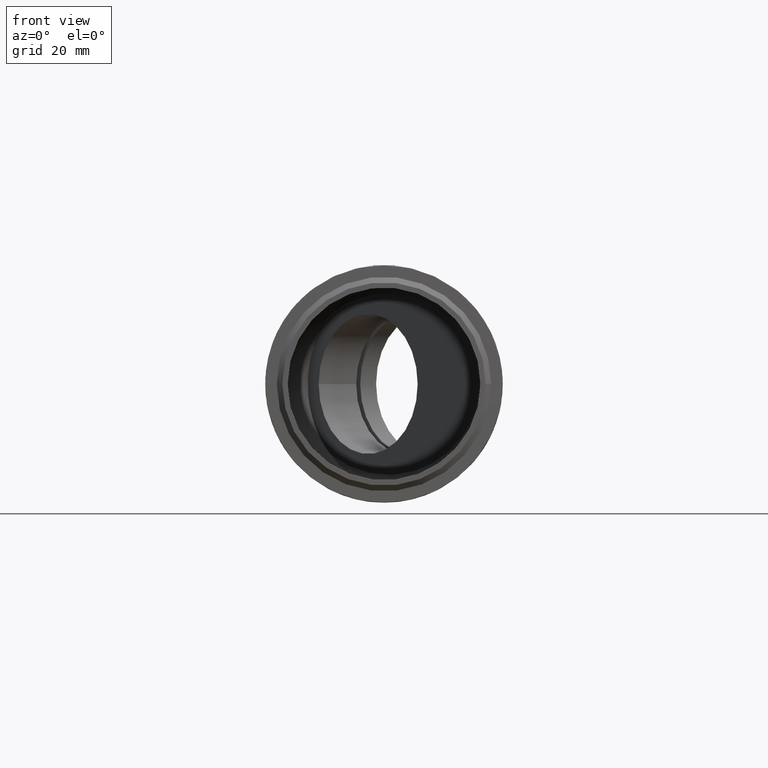
[diagram: clean part render]
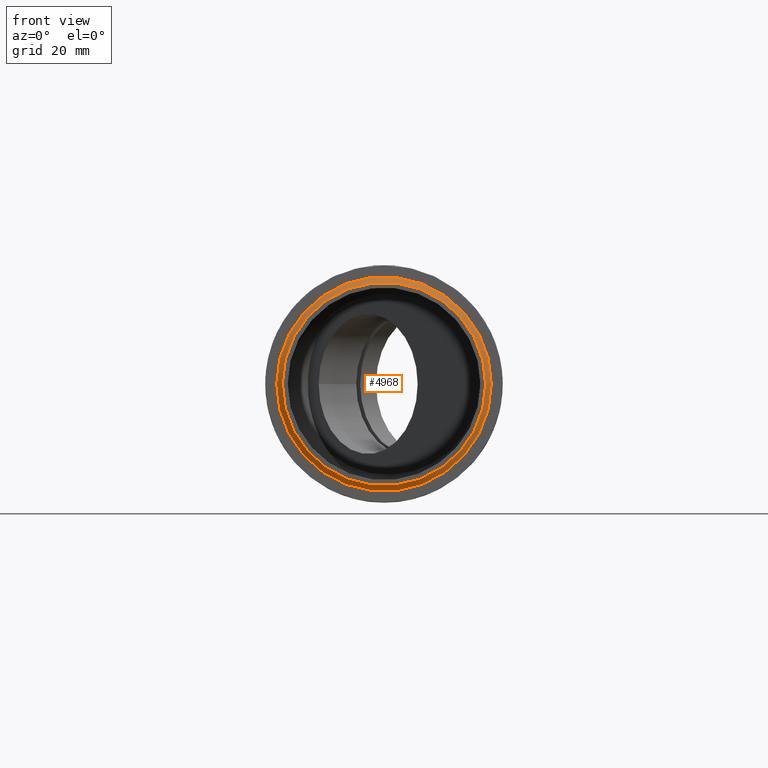
[diagram: same view with one face highlighted and labeled with its STEP entity id]
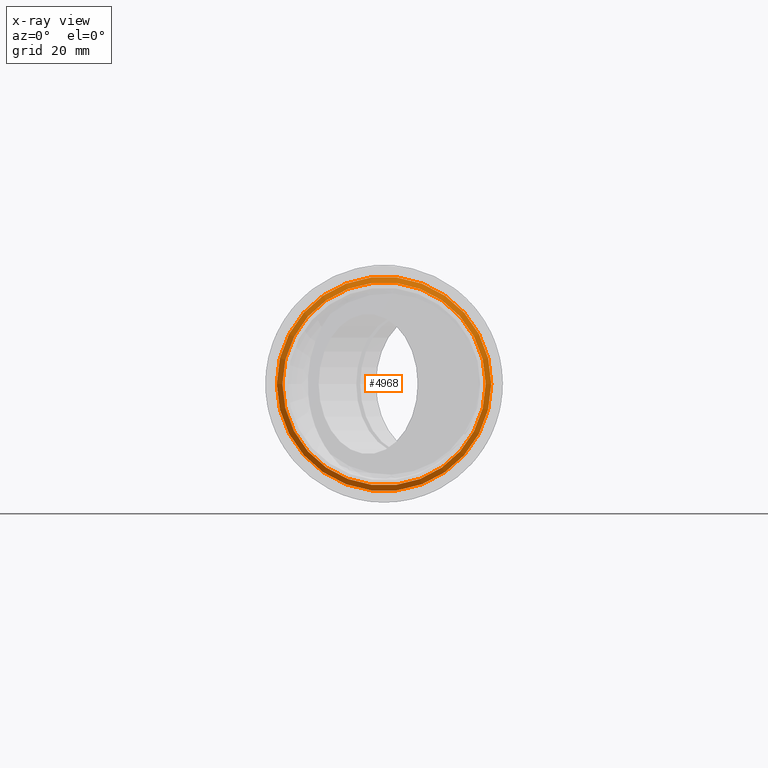
[diagram: x-ray of the same camera — body ghosted, the highlighted face saturated]
A machine part, front view. The second image highlights one B-rep face of the part: STEP entity #4968.
The next image is the same camera in x-ray: the body ghosted, the highlighted face saturated — about 0% of this face is hidden behind the body in this view.
In plain terms, the highlighted conical surface has half-angle 45 deg.
Its self-contained STEP definition (entity closure, byte-faithful):
#330 = DIRECTION ( 'NONE',  ( 5.540639898357049700E-018, 1.000000000000000000, 0.0000000000000000000 ) ) ;
#1373 = AXIS2_PLACEMENT_3D ( 'NONE', #10440, #330, #10506 ) ;
#1778 = EDGE_LOOP ( 'NONE', ( #17447 ) ) ;
#2929 = CARTESIAN_POINT ( 'NONE',  ( -1.108127979671411000E-016, -19.99999999999999600, 0.0000000000000000000 ) ) ;
#3251 = VERTEX_POINT ( 'NONE', #10872 ) ;
#3517 = EDGE_CURVE ( 'NONE', #15996, #15996, #15475, .T. ) ;
#3679 = EDGE_CURVE ( 'NONE', #3251, #3251, #6160, .T. ) ;
#3828 = CARTESIAN_POINT ( 'NONE',  ( -1.052721580687840500E-016, -18.99999999999999600, 0.0000000000000000000 ) ) ;
#4968 = ADVANCED_FACE ( 'NONE', ( #5904, #16803 ), #13191, .T. ) ;
#5284 = DIRECTION ( 'NONE',  ( 5.540639898357049700E-018, 1.000000000000000000, 0.0000000000000000000 ) ) ;
#5904 = FACE_OUTER_BOUND ( 'NONE', #15825, .T. ) ;
#6121 = AXIS2_PLACEMENT_3D ( 'NONE', #2929, #14586, #11737 ) ;
#6160 = CIRCLE ( 'NONE', #6121, 18.15000000000001300 ) ;
#6886 = DIRECTION ( 'NONE',  ( 1.000000000000000000, 0.0000000000000000000, 0.0000000000000000000 ) ) ;
#7695 = CARTESIAN_POINT ( 'NONE',  ( 19.15000000000000200, -18.99999999999999600, 0.0000000000000000000 ) ) ;
#10440 = CARTESIAN_POINT ( 'NONE',  ( -1.108127979671411000E-016, -19.99999999999999600, 0.0000000000000000000 ) ) ;
#10506 = DIRECTION ( 'NONE',  ( -1.000000000000000000, 0.0000000000000000000, 0.0000000000000000000 ) ) ;
#10872 = CARTESIAN_POINT ( 'NONE',  ( 18.15000000000001300, -19.99999999999999600, 0.0000000000000000000 ) ) ;
#11737 = DIRECTION ( 'NONE',  ( 1.000000000000000000, 0.0000000000000000000, 0.0000000000000000000 ) ) ;
#11995 = AXIS2_PLACEMENT_3D ( 'NONE', #3828, #5284, #6886 ) ;
#13191 = CONICAL_SURFACE ( 'NONE', #1373, 18.15000000000001300, 0.7853981633974430600 ) ;
#14586 = DIRECTION ( 'NONE',  ( -5.540639898357054400E-018, -1.000000000000000000, 0.0000000000000000000 ) ) ;
#15475 = CIRCLE ( 'NONE', #11995, 19.15000000000000200 ) ;
#15561 = ORIENTED_EDGE ( 'NONE', *, *, #3517, .F. ) ;
#15825 = EDGE_LOOP ( 'NONE', ( #15561 ) ) ;
#15996 = VERTEX_POINT ( 'NONE', #7695 ) ;
#16803 = FACE_BOUND ( 'NONE', #1778, .T. ) ;
#17447 = ORIENTED_EDGE ( 'NONE', *, *, #3679, .F. ) ;